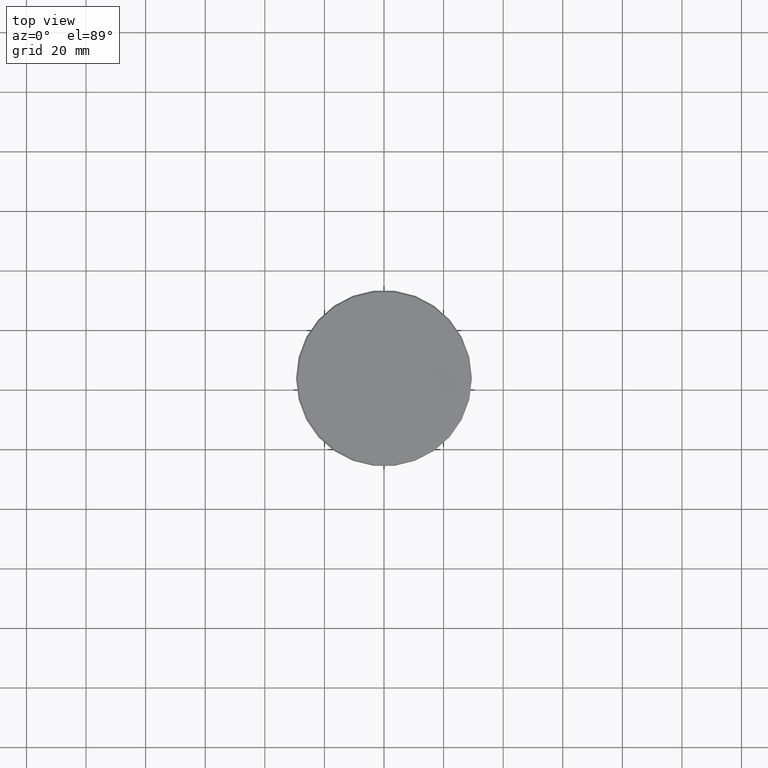
[diagram: clean part render]
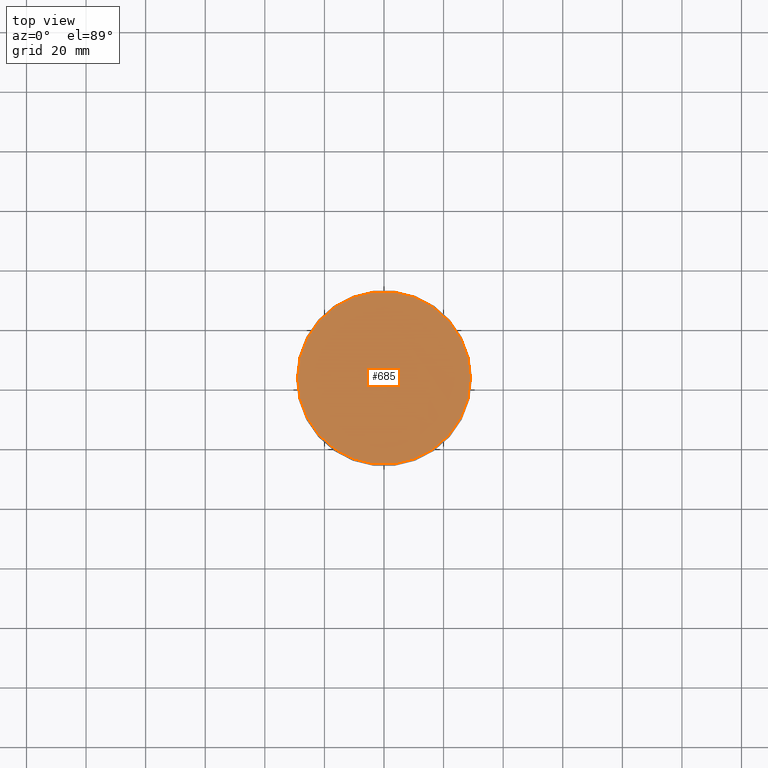
[diagram: same view with one face highlighted and labeled with its STEP entity id]
A machine part, top view. The second image highlights one B-rep face of the part: STEP entity #685.
In plain terms, the highlighted planar face has unit normal (0, -0, 1).
Its self-contained STEP definition (entity closure, byte-faithful):
#6 = CIRCLE ( 'NONE', #577, 28.99999999999999645 ) ;
#46 = CIRCLE ( 'NONE', #784, 28.99999999999999645 ) ;
#76 = CARTESIAN_POINT ( 'NONE',  ( 0.000000000000000000, 0.000000000000000000, 0.000000000000000000 ) ) ;
#118 = EDGE_CURVE ( 'NONE', #659, #495, #6, .T. ) ;
#186 = DIRECTION ( 'NONE',  ( 1.000000000000000000, 0.000000000000000000, 0.000000000000000000 ) ) ;
#233 = DIRECTION ( 'NONE',  ( 1.000000000000000000, 0.000000000000000000, 0.000000000000000000 ) ) ;
#495 = VERTEX_POINT ( 'NONE', #656 ) ;
#549 = CARTESIAN_POINT ( 'NONE',  ( 0.000000000000000000, 0.000000000000000000, 0.000000000000000000 ) ) ;
#577 = AXIS2_PLACEMENT_3D ( 'NONE', #76, #626, #720 ) ;
#626 = DIRECTION ( 'NONE',  ( -0.000000000000000000, -0.000000000000000000, 1.000000000000000000 ) ) ;
#656 = CARTESIAN_POINT ( 'NONE',  ( 28.99999999999999645, 3.582091887506007817E-15, 0.000000000000000000 ) ) ;
#659 = VERTEX_POINT ( 'NONE', #801 ) ;
#685 = ADVANCED_FACE ( 'NONE', ( #826 ), #926, .T. ) ;
#720 = DIRECTION ( 'NONE',  ( 1.000000000000000000, 0.000000000000000000, 0.000000000000000000 ) ) ;
#727 = ORIENTED_EDGE ( 'NONE', *, *, #118, .T. ) ;
#774 = ORIENTED_EDGE ( 'NONE', *, *, #1093, .T. ) ;
#784 = AXIS2_PLACEMENT_3D ( 'NONE', #1144, #1055, #233 ) ;
#801 = CARTESIAN_POINT ( 'NONE',  ( -28.99999999999999645, 0.000000000000000000, 0.000000000000000000 ) ) ;
#826 = FACE_OUTER_BOUND ( 'NONE', #1176, .T. ) ;
#926 = PLANE ( 'NONE',  #986 ) ;
#986 = AXIS2_PLACEMENT_3D ( 'NONE', #549, #1101, #186 ) ;
#1055 = DIRECTION ( 'NONE',  ( -0.000000000000000000, -0.000000000000000000, 1.000000000000000000 ) ) ;
#1093 = EDGE_CURVE ( 'NONE', #495, #659, #46, .T. ) ;
#1101 = DIRECTION ( 'NONE',  ( 0.000000000000000000, -0.000000000000000000, 1.000000000000000000 ) ) ;
#1144 = CARTESIAN_POINT ( 'NONE',  ( 0.000000000000000000, 0.000000000000000000, 0.000000000000000000 ) ) ;
#1176 = EDGE_LOOP ( 'NONE', ( #727, #774 ) ) ;